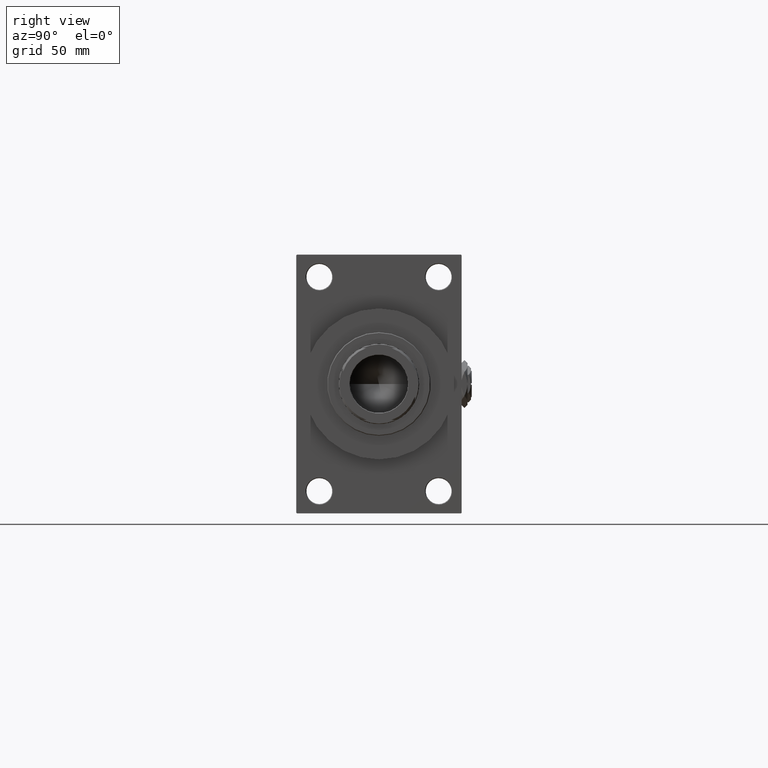
[diagram: clean part render]
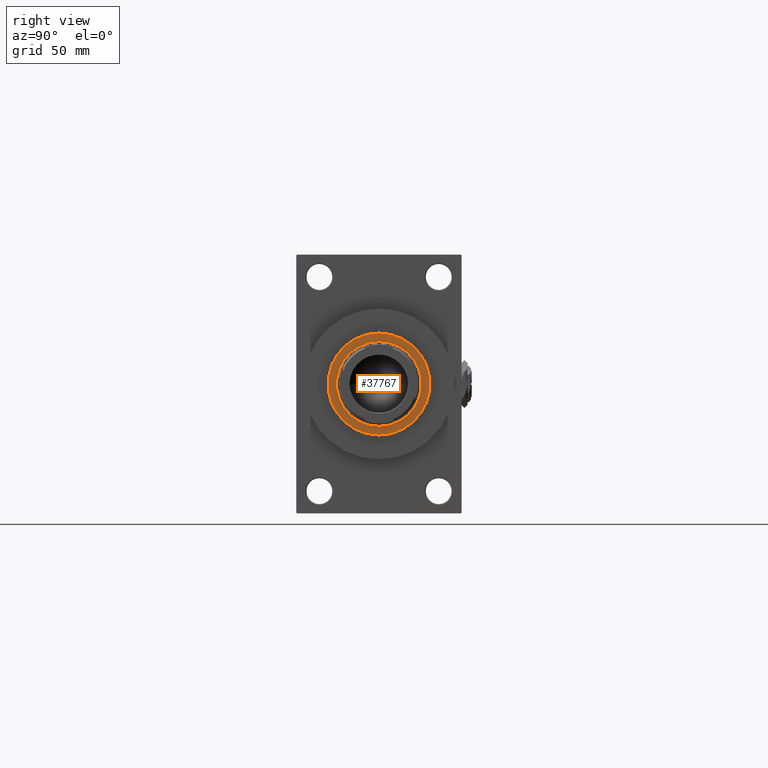
[diagram: same view with one face highlighted and labeled with its STEP entity id]
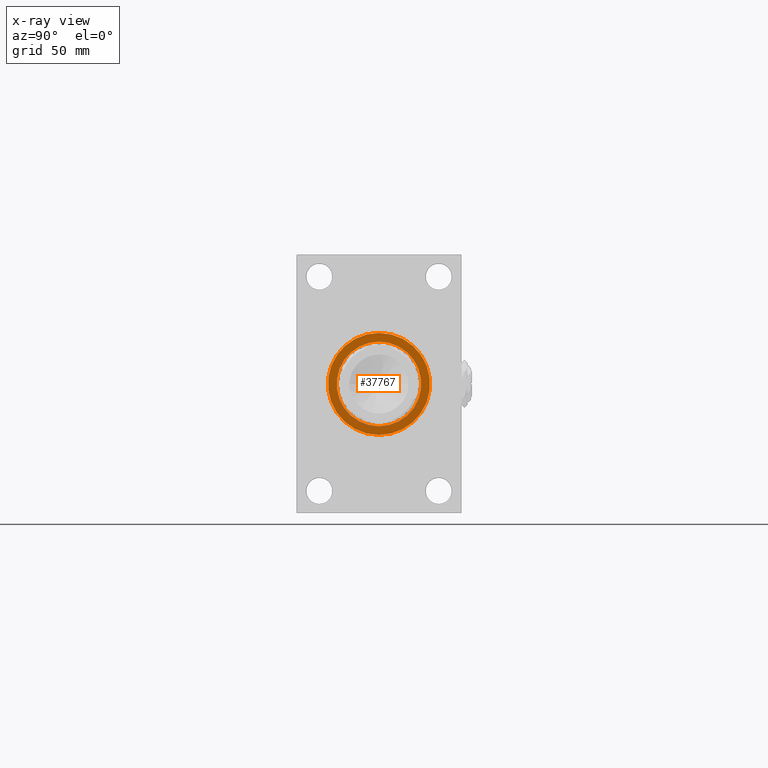
[diagram: x-ray of the same camera — body ghosted, the highlighted face saturated]
A machine part, right view. The second image highlights one B-rep face of the part: STEP entity #37767.
The next image is the same camera in x-ray: the body ghosted, the highlighted face saturated — about 0% of this face is hidden behind the body in this view.
In plain terms, the highlighted planar face has unit normal (1, -0, -0).
Its self-contained STEP definition (entity closure, byte-faithful):
#961 = AXIS2_PLACEMENT_3D ( 'NONE', #6956, #19462, #21806 ) ;
#3322 = CARTESIAN_POINT ( 'NONE',  ( 0.000000000000000000, 0.000000000000000000, 52.25999999999999801 ) ) ;
#3441 = DIRECTION ( 'NONE',  ( 1.000000000000000000, 0.000000000000000000, 0.000000000000000000 ) ) ;
#4967 = CIRCLE ( 'NONE', #11498, 29.50000000000000355 ) ;
#5869 = CARTESIAN_POINT ( 'NONE',  ( -29.50000000000000355, 3.612708057484692393E-15, 52.25999999999999801 ) ) ;
#6956 = CARTESIAN_POINT ( 'NONE',  ( 0.000000000000000000, 0.000000000000000000, 52.25999999999999801 ) ) ;
#6964 = CARTESIAN_POINT ( 'NONE',  ( 0.000000000000000000, 0.000000000000000000, 52.25999999999999801 ) ) ;
#7005 = EDGE_CURVE ( 'NONE', #16917, #39396, #45089, .T. ) ;
#8286 = DIRECTION ( 'NONE',  ( 0.000000000000000000, 0.000000000000000000, 1.000000000000000000 ) ) ;
#10030 = CARTESIAN_POINT ( 'NONE',  ( 35.50000000000000711, 4.378112306951787069E-15, 52.25999999999999801 ) ) ;
#10031 = DIRECTION ( 'NONE',  ( 1.000000000000000000, 0.000000000000000000, 0.000000000000000000 ) ) ;
#11498 = AXIS2_PLACEMENT_3D ( 'NONE', #46575, #38766, #34731 ) ;
#12862 = ORIENTED_EDGE ( 'NONE', *, *, #20646, .F. ) ;
#14087 = EDGE_LOOP ( 'NONE', ( #17415, #16159 ) ) ;
#15261 = DIRECTION ( 'NONE',  ( 0.000000000000000000, 0.000000000000000000, 1.000000000000000000 ) ) ;
#16159 = ORIENTED_EDGE ( 'NONE', *, *, #7005, .T. ) ;
#16917 = VERTEX_POINT ( 'NONE', #10030 ) ;
#17415 = ORIENTED_EDGE ( 'NONE', *, *, #28640, .T. ) ;
#17842 = DIRECTION ( 'NONE',  ( 0.000000000000000000, 0.000000000000000000, 1.000000000000000000 ) ) ;
#18599 = VERTEX_POINT ( 'NONE', #5869 ) ;
#19462 = DIRECTION ( 'NONE',  ( 0.000000000000000000, 0.000000000000000000, 1.000000000000000000 ) ) ;
#20509 = EDGE_CURVE ( 'NONE', #18599, #48375, #4967, .T. ) ;
#20646 = EDGE_CURVE ( 'NONE', #48375, #18599, #21834, .T. ) ;
#21806 = DIRECTION ( 'NONE',  ( 1.000000000000000000, 0.000000000000000000, -0.000000000000000000 ) ) ;
#21834 = CIRCLE ( 'NONE', #28404, 29.50000000000000355 ) ;
#22090 = CIRCLE ( 'NONE', #40572, 35.50000000000000711 ) ;
#23384 = AXIS2_PLACEMENT_3D ( 'NONE', #6964, #15261, #3441 ) ;
#27183 = EDGE_LOOP ( 'NONE', ( #12862, #38712 ) ) ;
#28404 = AXIS2_PLACEMENT_3D ( 'NONE', #41245, #17842, #10031 ) ;
#28640 = EDGE_CURVE ( 'NONE', #39396, #16917, #22090, .T. ) ;
#34157 = CARTESIAN_POINT ( 'NONE',  ( -35.50000000000000711, 0.000000000000000000, 52.25999999999999801 ) ) ;
#34531 = CARTESIAN_POINT ( 'NONE',  ( 29.50000000000000355, 0.000000000000000000, 52.25999999999999801 ) ) ;
#34731 = DIRECTION ( 'NONE',  ( 1.000000000000000000, 0.000000000000000000, 0.000000000000000000 ) ) ;
#34823 = FACE_OUTER_BOUND ( 'NONE', #14087, .T. ) ;
#36918 = PLANE ( 'NONE',  #961 ) ;
#37767 = ADVANCED_FACE ( 'NONE', ( #46176, #34823 ), #36918, .T. ) ;
#38712 = ORIENTED_EDGE ( 'NONE', *, *, #20509, .F. ) ;
#38766 = DIRECTION ( 'NONE',  ( 0.000000000000000000, 0.000000000000000000, 1.000000000000000000 ) ) ;
#39396 = VERTEX_POINT ( 'NONE', #34157 ) ;
#40572 = AXIS2_PLACEMENT_3D ( 'NONE', #3322, #8286, #49421 ) ;
#41245 = CARTESIAN_POINT ( 'NONE',  ( 0.000000000000000000, 0.000000000000000000, 52.25999999999999801 ) ) ;
#45089 = CIRCLE ( 'NONE', #23384, 35.50000000000000711 ) ;
#46176 = FACE_BOUND ( 'NONE', #27183, .T. ) ;
#46575 = CARTESIAN_POINT ( 'NONE',  ( 0.000000000000000000, 0.000000000000000000, 52.25999999999999801 ) ) ;
#48375 = VERTEX_POINT ( 'NONE', #34531 ) ;
#49421 = DIRECTION ( 'NONE',  ( 1.000000000000000000, 0.000000000000000000, 0.000000000000000000 ) ) ;